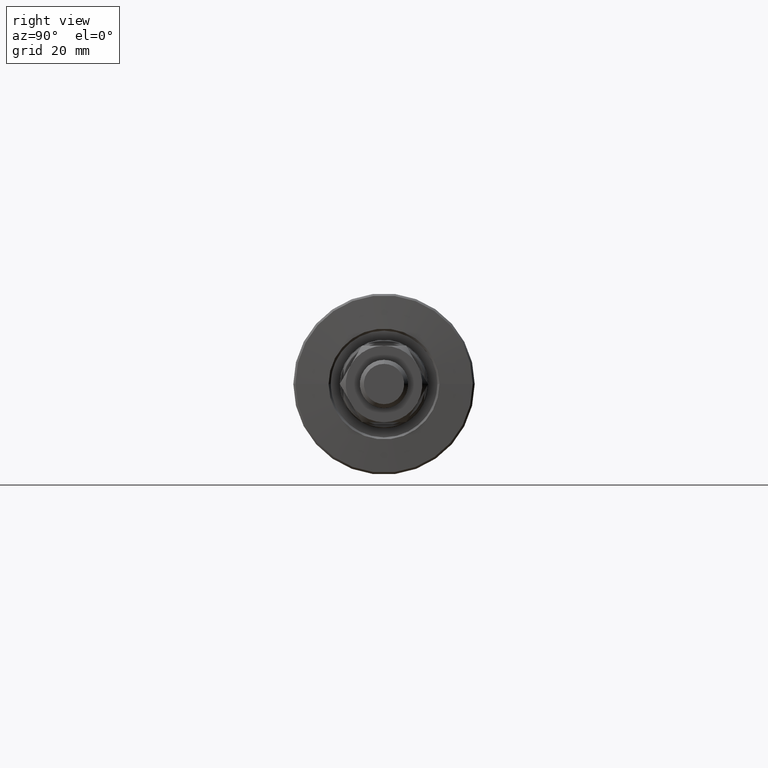
[diagram: clean part render]
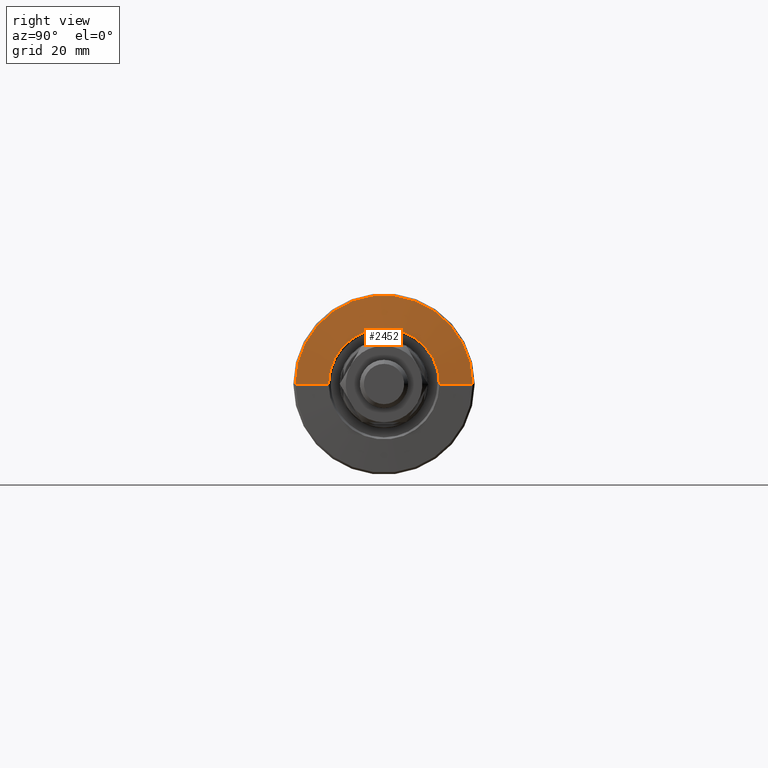
[diagram: same view with one face highlighted and labeled with its STEP entity id]
A machine part, right view. The second image highlights one B-rep face of the part: STEP entity #2452.
In plain terms, the highlighted conical surface has half-angle 87.138 deg.
Its self-contained STEP definition (entity closure, byte-faithful):
#56 = AXIS2_PLACEMENT_3D ( 'NONE', #1239, #892, #1548 ) ;
#95 = FACE_OUTER_BOUND ( 'NONE', #3932, .T. ) ;
#198 = DIRECTION ( 'NONE',  ( -0.04993761694392019612, 0.9987523388778434263, 1.223118854947683487E-16 ) ) ;
#248 = CIRCLE ( 'NONE', #56, 13.74937616943895868 ) ;
#505 = EDGE_CURVE ( 'NONE', #2108, #3141, #1534, .T. ) ;
#892 = DIRECTION ( 'NONE',  ( -1.000000000000000000, 1.333885945136072597E-15, -0.000000000000000000 ) ) ;
#903 = EDGE_CURVE ( 'NONE', #2108, #1586, #248, .T. ) ;
#933 = ORIENTED_EDGE ( 'NONE', *, *, #2976, .F. ) ;
#957 = DIRECTION ( 'NONE',  ( -0.04993761694392286066, -0.9987523388778432043, 0.000000000000000000 ) ) ;
#987 = CONICAL_SURFACE ( 'NONE', #1834, 21.99999999999993250, 1.520837931072924532 ) ;
#1011 = CARTESIAN_POINT ( 'NONE',  ( -1.100000000000612932, 21.99999999999989342, 2.724839128102853891E-15 ) ) ;
#1092 = ORIENTED_EDGE ( 'NONE', *, *, #505, .F. ) ;
#1112 = VECTOR ( 'NONE', #198, 999.9999999999998863 ) ;
#1120 = CIRCLE ( 'NONE', #1972, 21.99999999999993250 ) ;
#1132 = ORIENTED_EDGE ( 'NONE', *, *, #2244, .T. ) ;
#1239 = CARTESIAN_POINT ( 'NONE',  ( -0.6874688084723690196, -3.947309180586395012E-14, 0.000000000000000000 ) ) ;
#1534 = LINE ( 'NONE', #4003, #2336 ) ;
#1548 = DIRECTION ( 'NONE',  ( -1.332643495181402961E-15, -1.000000000000000000, 0.000000000000000000 ) ) ;
#1586 = VERTEX_POINT ( 'NONE', #3893 ) ;
#1763 = DIRECTION ( 'NONE',  ( -1.000000000000000000, 1.333885945136072597E-15, -0.000000000000000000 ) ) ;
#1787 = ORIENTED_EDGE ( 'NONE', *, *, #903, .T. ) ;
#1834 = AXIS2_PLACEMENT_3D ( 'NONE', #3900, #2905, #2972 ) ;
#1972 = AXIS2_PLACEMENT_3D ( 'NONE', #2049, #1763, #2686 ) ;
#2049 = CARTESIAN_POINT ( 'NONE',  ( -1.100000000000642242, -3.892282224755411592E-14, 0.000000000000000000 ) ) ;
#2108 = VERTEX_POINT ( 'NONE', #2870 ) ;
#2244 = EDGE_CURVE ( 'NONE', #1586, #3018, #3032, .T. ) ;
#2336 = VECTOR ( 'NONE', #957, 1000.000000000000114 ) ;
#2452 = ADVANCED_FACE ( 'NONE', ( #95 ), #987, .T. ) ;
#2686 = DIRECTION ( 'NONE',  ( -1.330611757141304966E-15, -1.000000000000000000, 0.000000000000000000 ) ) ;
#2719 = CARTESIAN_POINT ( 'NONE',  ( -1.100000000000612932, 21.99999999999989342, 2.694222958124168921E-15 ) ) ;
#2870 = CARTESIAN_POINT ( 'NONE',  ( -0.6874688084723873382, -13.74937616943899776, 0.000000000000000000 ) ) ;
#2905 = DIRECTION ( 'NONE',  ( -1.000000000000000000, 1.333885945136072597E-15, -0.000000000000000000 ) ) ;
#2972 = DIRECTION ( 'NONE',  ( -1.330611757141304966E-15, -1.000000000000000000, 0.000000000000000000 ) ) ;
#2976 = EDGE_CURVE ( 'NONE', #3141, #3018, #1120, .T. ) ;
#3018 = VERTEX_POINT ( 'NONE', #1011 ) ;
#3032 = LINE ( 'NONE', #2719, #1112 ) ;
#3141 = VERTEX_POINT ( 'NONE', #3374 ) ;
#3374 = CARTESIAN_POINT ( 'NONE',  ( -1.100000000000671330, -21.99999999999997158, 0.000000000000000000 ) ) ;
#3893 = CARTESIAN_POINT ( 'NONE',  ( -0.6874688084723507009, 13.74937616943891783, 2.189017954870900343E-15 ) ) ;
#3900 = CARTESIAN_POINT ( 'NONE',  ( -1.100000000000642242, -3.892282224755411592E-14, 0.000000000000000000 ) ) ;
#3932 = EDGE_LOOP ( 'NONE', ( #1787, #1132, #933, #1092 ) ) ;
#4003 = CARTESIAN_POINT ( 'NONE',  ( -1.100000000000671330, -21.99999999999997158, 0.000000000000000000 ) ) ;